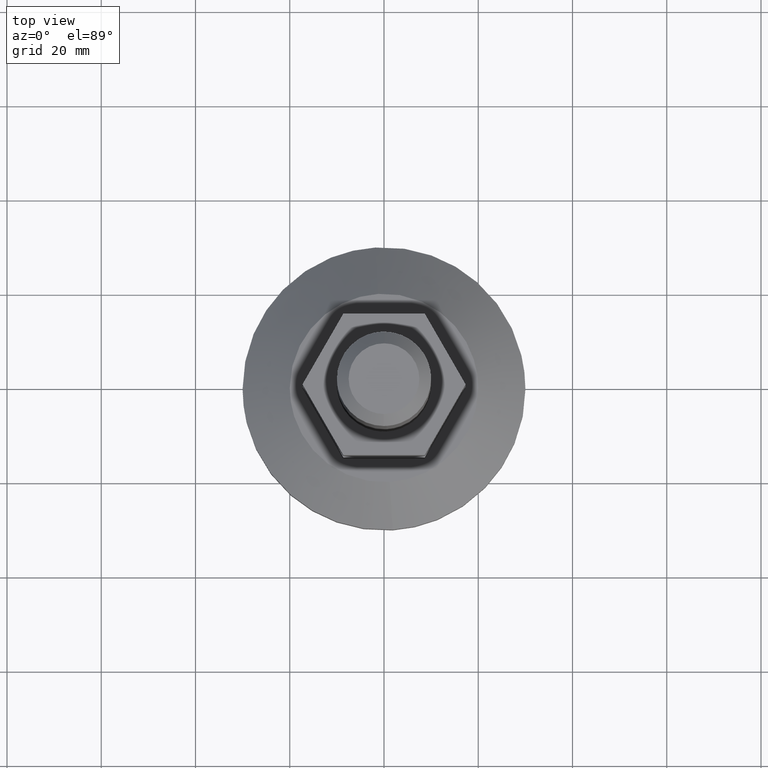
[diagram: clean part render]
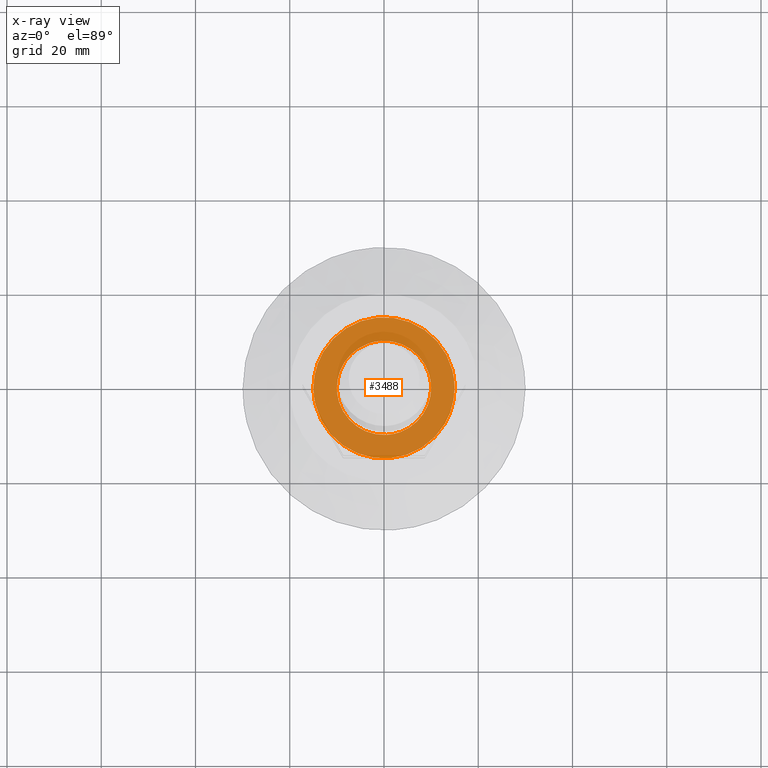
[diagram: x-ray — body ghosted, one internal face saturated and labeled with its STEP entity id]
A machine part, top view, then the same camera in x-ray: the body is ghosted and one INTERNAL B-rep face — a face not visible from any outside direction — is saturated and labeled: STEP entity #3488.
In plain terms, the highlighted face is a freeform B-spline surface patch.
Its self-contained STEP definition (entity closure, byte-faithful):
#3227=CARTESIAN_POINT('',(-14.979491943233780,0.0,17.0));
#3228=VERTEX_POINT('',#3227);
#3229=CARTESIAN_POINT('',(-12.898959870634020,7.615905273388657,17.000000000000970));
#3230=VERTEX_POINT('',#3229);
#3231=CARTESIAN_POINT('',(-14.979491943233780,0.0,17.0));
#3232=CARTESIAN_POINT('',(-14.979491943234500,4.092135117288441,17.000000000000490));
#3233=CARTESIAN_POINT('',(-12.898959870634027,7.615905273388657,17.000000000000973));
#3241=(BOUNDED_CURVE()B_SPLINE_CURVE(2,(#3231,#3232,#3233),.UNSPECIFIED.,.F.,.U.)B_SPLINE_CURVE_WITH_KNOTS((3,3),(0.500000000000000,0.586766463431474),.UNSPECIFIED.)CURVE()GEOMETRIC_REPRESENTATION_ITEM()RATIONAL_B_SPLINE_CURVE((1.0,0.898346764961983,0.867254263528903))REPRESENTATION_ITEM(''));
#3242=EDGE_CURVE('',#3228,#3230,#3241,.T.);
#3244=CARTESIAN_POINT('',(12.898959870634020,-7.615905273388657,17.000000000000970));
#3245=VERTEX_POINT('',#3244);
#3246=CARTESIAN_POINT('',(12.898959870634020,-7.615905273388657,17.000000000000970));
#3247=CARTESIAN_POINT('',(12.562728406181650,-8.185396684561027,17.000000000000981));
#3248=CARTESIAN_POINT('',(11.670890271013590,-9.490267639576391,17.000000000000970));
#3249=CARTESIAN_POINT('',(10.091318813461610,-11.160567638585370,17.000000000000860));
#3250=CARTESIAN_POINT('',(8.345735002769079,-12.488223340196850,17.000000000000892));
#3251=CARTESIAN_POINT('',(6.447587932012758,-13.582498071318669,17.000000000000838));
#3252=CARTESIAN_POINT('',(4.356137011855690,-14.406242063470129,17.000000000000639));
#3253=CARTESIAN_POINT('',(2.159134759052678,-14.867733473445121,17.000000000000810));
#3254=CARTESIAN_POINT('',(-0.025689366563302,-15.031107509471470,17.000000000000298));
#3255=CARTESIAN_POINT('',(-2.471047466218033,-14.864709007650360,17.000000000000789));
#3256=CARTESIAN_POINT('',(-5.043163506172324,-14.190113346078761,17.000000000000298));
#3257=CARTESIAN_POINT('',(-7.125478587359886,-13.222904069966150,17.000000000000480));
#3258=CARTESIAN_POINT('',(-8.849496456943818,-12.136881951290070,17.000000000000121));
#3259=CARTESIAN_POINT('',(-10.384797399234779,-10.871070383003930,17.000000000000512));
#3260=CARTESIAN_POINT('',(-12.126444164396290,-8.939043117159606,17.000000000000021));
#3261=CARTESIAN_POINT('',(-13.437969487678300,-6.800811484223531,17.000000000000149));
#3262=CARTESIAN_POINT('',(-14.345558912962799,-4.473210299741822,17.000000000000188));
#3263=CARTESIAN_POINT('',(-14.854788894369200,-2.340081898005981,16.999999999999439));
#3264=CARTESIAN_POINT('',(-14.979553497562030,-0.813941720065300,17.000000000001020));
#3265=CARTESIAN_POINT('',(-14.979491943233780,0.0,17.0));
#3266=B_SPLINE_CURVE_WITH_KNOTS('',3,(#3246,#3247,#3248,#3249,#3250,#3251,#3252,#3253,#3254,#3255,#3256,#3257,#3258,#3259,#3260,#3261,#3262,#3263,#3264,#3265),.UNSPECIFIED.,.F.,.U.,(4,1,1,1,1,1,1,1,1,1,1,1,1,1,1,1,1,4),(0.000000022494426,1.984038103484011,4.731178142803486,6.867848942453975,8.546660878991062,11.293811142969050,13.583106509829740,15.261884403843711,17.856283375502311,20.908656916692419,23.197962643703661,24.724154710782908,27.013447258106432,29.150122497284570,32.507747042254167,34.491791111499332,36.628474804578779,39.070297361669503),.UNSPECIFIED.);
#3267=EDGE_CURVE('',#3245,#3228,#3266,.T.);
#3304=CARTESIAN_POINT('',(14.979491943233780,0.0,17.0));
#3305=VERTEX_POINT('',#3304);
#3306=CARTESIAN_POINT('',(-12.898959870634020,7.615905273388657,17.000000000000970));
#3307=CARTESIAN_POINT('',(-12.201014795170551,8.798990072068767,17.000000000000970));
#3308=CARTESIAN_POINT('',(-10.699799456920090,10.688957734429430,17.000000000000931));
#3309=CARTESIAN_POINT('',(-7.913369816853353,12.853716542273620,17.000000000000860));
#3310=CARTESIAN_POINT('',(-5.373805981821654,14.069539921602519,17.000000000000721));
#3311=CARTESIAN_POINT('',(-3.013963956838602,14.717892009286370,17.000000000000771));
#3312=CARTESIAN_POINT('',(-1.043936966044527,14.987022912049390,17.000000000000771));
#3313=CARTESIAN_POINT('',(1.301331982442763,14.994951032103950,17.000000000000501));
#3314=CARTESIAN_POINT('',(3.672145213300772,14.600656989463060,17.000000000000519));
#3315=CARTESIAN_POINT('',(6.174245352201666,13.721177150888860,17.000000000000380));
#3316=CARTESIAN_POINT('',(8.280262008097909,12.567950217313751,17.000000000000419));
#3317=CARTESIAN_POINT('',(10.001054027143519,11.206980897211441,16.999999999999790));
#3318=CARTESIAN_POINT('',(11.354533666709219,9.823166540935860,17.000000000001521));
#3319=CARTESIAN_POINT('',(12.538042202348141,8.289264339901173,16.999999999999350));
#3320=CARTESIAN_POINT('',(13.768513908348201,6.112958778656465,17.000000000000512));
#3321=CARTESIAN_POINT('',(14.733191676512190,3.306632938665324,16.999999999999961));
#3322=CARTESIAN_POINT('',(14.979710055019670,1.119209365104502,16.999999999999950));
#3323=CARTESIAN_POINT('',(14.979491943233780,0.0,17.0));
#3324=B_SPLINE_CURVE_WITH_KNOTS('',3,(#3306,#3307,#3308,#3309,#3310,#3311,#3312,#3313,#3314,#3315,#3316,#3317,#3318,#3319,#3320,#3321,#3322,#3323),.UNSPECIFIED.,.F.,.U.,(4,1,1,1,1,1,1,1,1,1,1,1,1,1,1,4),(0.000000022493367,4.120697835317124,7.173068565067307,10.530705636005660,12.514711150912319,14.498809698030680,16.482687043776401,19.535095054785089,21.671764806740342,24.418933341942829,26.708208909845698,28.234403431821502,30.218458614992489,32.507747042254067,35.712706415240582,39.070297361669553),.UNSPECIFIED.);
#3325=EDGE_CURVE('',#3230,#3305,#3324,.T.);
#3333=CARTESIAN_POINT('',(14.979491943233780,0.0,17.0));
#3334=CARTESIAN_POINT('',(14.979491943234500,-4.092135117288441,17.000000000000490));
#3335=CARTESIAN_POINT('',(12.898959870634027,-7.615905273388657,17.000000000000973));
#3343=(BOUNDED_CURVE()B_SPLINE_CURVE(2,(#3333,#3334,#3335),.UNSPECIFIED.,.F.,.U.)B_SPLINE_CURVE_WITH_KNOTS((3,3),(0.0,0.086766463431474),.UNSPECIFIED.)CURVE()GEOMETRIC_REPRESENTATION_ITEM()RATIONAL_B_SPLINE_CURVE((1.0,0.898346764961983,0.867254263528903))REPRESENTATION_ITEM(''));
#3344=EDGE_CURVE('',#3305,#3245,#3343,.T.);
#3368=CARTESIAN_POINT('',(0.610485395432716,-9.981347984213521,17.000000000000131));
#3369=VERTEX_POINT('',#3368);
#3375=CARTESIAN_POINT('',(-10.0,0.0,17.000000000000249));
#3376=VERTEX_POINT('',#3375);
#3377=CARTESIAN_POINT('',(0.610485395432716,-9.981347984213521,17.000000000000131));
#3378=CARTESIAN_POINT('',(0.305527633028081,-9.999999999999998,17.000000000000252));
#3379=CARTESIAN_POINT('',(0.0,-10.0,17.000000000000249));
#3380=CARTESIAN_POINT('',(-10.000000000000002,-10.000000000000002,17.000000000000256));
#3381=CARTESIAN_POINT('',(-10.0,0.0,17.000000000000249));
#3389=(BOUNDED_CURVE()B_SPLINE_CURVE(2,(#3377,#3378,#3379,#3380,#3381),.UNSPECIFIED.,.F.,.U.)B_SPLINE_CURVE_WITH_KNOTS((3,2,3),(0.239332962240514,0.250000000000000,0.500000000000000),.UNSPECIFIED.)CURVE()GEOMETRIC_REPRESENTATION_ITEM()RATIONAL_B_SPLINE_CURVE((0.976072041670084,0.987502787901678,1.0,0.707106781186548,1.0))REPRESENTATION_ITEM(''));
#3390=EDGE_CURVE('',#3369,#3376,#3389,.T.);
#3392=CARTESIAN_POINT('',(-0.610485395432717,9.981347984213521,17.000000000000131));
#3393=VERTEX_POINT('',#3392);
#3394=CARTESIAN_POINT('',(-10.0,0.0,17.000000000000249));
#3395=CARTESIAN_POINT('',(-10.0,9.407060668977492,17.000000000000249));
#3396=CARTESIAN_POINT('',(-0.610485395432720,9.981347984213521,17.000000000000245));
#3404=(BOUNDED_CURVE()B_SPLINE_CURVE(2,(#3394,#3395,#3396),.UNSPECIFIED.,.F.,.U.)B_SPLINE_CURVE_WITH_KNOTS((3,3),(0.500000000000000,0.739332962240514),.UNSPECIFIED.)CURVE()GEOMETRIC_REPRESENTATION_ITEM()RATIONAL_B_SPLINE_CURVE((1.0,0.719603993284870,0.976072041670084))REPRESENTATION_ITEM(''));
#3405=EDGE_CURVE('',#3376,#3393,#3404,.T.);
#3437=CARTESIAN_POINT('',(10.0,0.0,17.000000000000249));
#3438=VERTEX_POINT('',#3437);
#3439=CARTESIAN_POINT('',(-0.610485395432717,9.981347984213521,17.000000000000135));
#3440=CARTESIAN_POINT('',(-0.305527633028082,10.0,17.000000000000252));
#3441=CARTESIAN_POINT('',(0.0,10.0,17.000000000000249));
#3442=CARTESIAN_POINT('',(10.000000000000002,10.000000000000002,17.000000000000256));
#3443=CARTESIAN_POINT('',(10.0,0.0,17.000000000000249));
#3451=(BOUNDED_CURVE()B_SPLINE_CURVE(2,(#3439,#3440,#3441,#3442,#3443),.UNSPECIFIED.,.F.,.U.)B_SPLINE_CURVE_WITH_KNOTS((3,2,3),(0.739332962240514,0.750000000000000,1.0),.UNSPECIFIED.)CURVE()GEOMETRIC_REPRESENTATION_ITEM()RATIONAL_B_SPLINE_CURVE((0.976072041670084,0.987502787901678,1.0,0.707106781186548,1.0))REPRESENTATION_ITEM(''));
#3452=EDGE_CURVE('',#3393,#3438,#3451,.T.);
#3454=CARTESIAN_POINT('',(10.0,0.0,17.000000000000249));
#3455=CARTESIAN_POINT('',(10.0,-9.407060668977495,17.000000000000252));
#3456=CARTESIAN_POINT('',(0.610485395432717,-9.981347984213523,17.000000000000256));
#3464=(BOUNDED_CURVE()B_SPLINE_CURVE(2,(#3454,#3455,#3456),.UNSPECIFIED.,.F.,.U.)B_SPLINE_CURVE_WITH_KNOTS((3,3),(0.0,0.239332962240514),.UNSPECIFIED.)CURVE()GEOMETRIC_REPRESENTATION_ITEM()RATIONAL_B_SPLINE_CURVE((1.0,0.719603993284870,0.976072041670084))REPRESENTATION_ITEM(''));
#3465=EDGE_CURVE('',#3438,#3369,#3464,.T.);
#3471=CARTESIAN_POINT('',(-16.475943130296510,-16.475661708154490,17.0));
#3472=CARTESIAN_POINT('',(16.475943933859082,-16.475661708154490,17.0));
#3473=CARTESIAN_POINT('',(-16.475943130296510,16.475661172446110,17.0));
#3474=CARTESIAN_POINT('',(16.475943933859082,16.475661172446110,17.0));
#3475=B_SPLINE_SURFACE_WITH_KNOTS('',1,1,((#3471,#3473),(#3472,#3474)),.UNSPECIFIED.,.F.,.F.,.U.,(2,2),(2,2),(0.0,32.951887064155592),(0.0,32.951322880600593),.UNSPECIFIED.);
#3476=ORIENTED_EDGE('',*,*,#3344,.T.);
#3477=ORIENTED_EDGE('',*,*,#3267,.T.);
#3478=ORIENTED_EDGE('',*,*,#3242,.T.);
#3479=ORIENTED_EDGE('',*,*,#3325,.T.);
#3480=EDGE_LOOP('',(#3476,#3477,#3478,#3479));
#3481=FACE_OUTER_BOUND('',#3480,.T.);
#3482=ORIENTED_EDGE('',*,*,#3405,.F.);
#3483=ORIENTED_EDGE('',*,*,#3390,.F.);
#3484=ORIENTED_EDGE('',*,*,#3465,.F.);
#3485=ORIENTED_EDGE('',*,*,#3452,.F.);
#3486=EDGE_LOOP('',(#3482,#3483,#3484,#3485));
#3487=FACE_BOUND('',#3486,.T.);
#3488=ADVANCED_FACE('',(#3481,#3487),#3475,.F.);